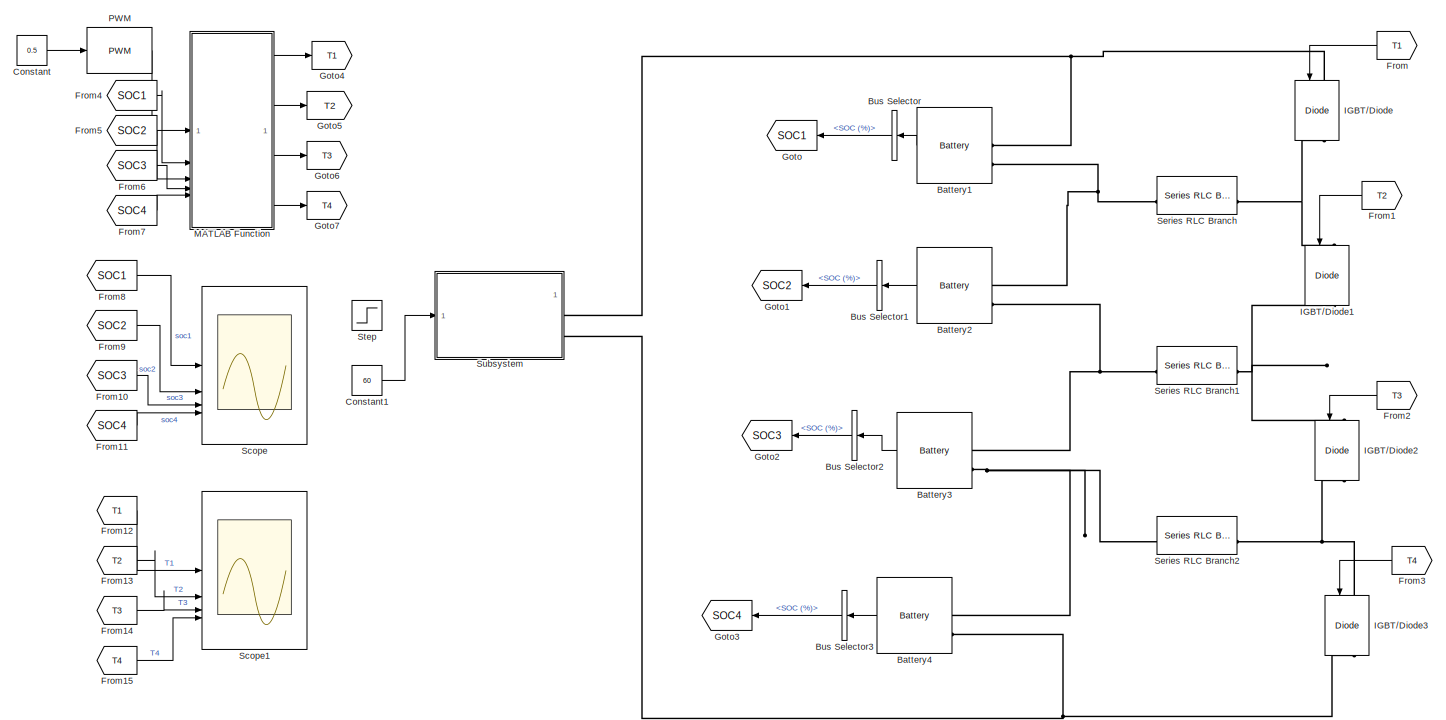
[diagram: root canvas - part 1/2, most of the canvas]
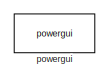
[diagram: root canvas - part 2/2, top left region]
MODEL slx_6eb0016095eb
KIND model
CONFIG AbsTol = auto
CONFIG EnableMultiTasking = off
CONFIG FixedStep = auto
CONFIG MaxStep = 1e-3
CONFIG MinStep = auto
CONFIG RelTol = 1e-3
CONFIG SampleTimeConstraint = Unconstrained
CONFIG SolverName = ode23tb
CONFIG StartTime = 0.0
CONFIG StopTime = 25
BLOCK [Reference] Battery1  REF=spsBatteryLib/Battery
  LibrarySourceBlock = sps_lib/Sources/Battery
  SourceBlock = spsBatteryLib/Battery
  SourceType = Battery
BLOCK [Reference] Battery2  REF=spsBatteryLib/Battery
  LibrarySourceBlock = sps_lib/Sources/Battery
  SourceBlock = spsBatteryLib/Battery
  SourceType = Battery
BLOCK [Reference] Battery3  REF=spsBatteryLib/Battery
  LibrarySourceBlock = sps_lib/Sources/Battery
  SourceBlock = spsBatteryLib/Battery
  SourceType = Battery
BLOCK [Reference] Battery4  REF=spsBatteryLib/Battery
  LibrarySourceBlock = sps_lib/Sources/Battery
  SourceBlock = spsBatteryLib/Battery
  SourceType = Battery
BLOCK [BusSelector] Bus Selector
  NameLocation = top
  OutputSignals = SOC (%)
BLOCK [BusSelector] Bus Selector1
  NameLocation = top
  OutputSignals = SOC (%)
BLOCK [BusSelector] Bus Selector2
  NameLocation = top
  OutputSignals = SOC (%)
BLOCK [BusSelector] Bus Selector3
  NameLocation = top
  OutputSignals = SOC (%)
BLOCK [Constant] Constant
  Value = 0.5
BLOCK [Constant] Constant1
  Value = 60
BLOCK [From] From
  GotoTag = T1
  NameLocation = top
BLOCK [From] From1
  GotoTag = T2
  NameLocation = top
BLOCK [From] From10
  GotoTag = SOC3
  NameLocation = top
BLOCK [From] From11
  GotoTag = SOC4
  NameLocation = top
BLOCK [From] From12
  GotoTag = T1
  NameLocation = top
BLOCK [From] From13
  GotoTag = T2
  NameLocation = top
BLOCK [From] From14
  GotoTag = T3
  NameLocation = top
BLOCK [From] From15
  GotoTag = T4
  NameLocation = top
BLOCK [From] From2
  GotoTag = T3
  NameLocation = top
BLOCK [From] From3
  GotoTag = T4
  NameLocation = top
BLOCK [From] From4
  GotoTag = SOC1
  NameLocation = top
BLOCK [From] From5
  GotoTag = SOC2
  NameLocation = top
BLOCK [From] From6
  GotoTag = SOC3
  NameLocation = top
BLOCK [From] From7
  GotoTag = SOC4
  NameLocation = top
BLOCK [From] From8
  GotoTag = SOC1
  NameLocation = top
BLOCK [From] From9
  GotoTag = SOC2
  NameLocation = top
BLOCK [Goto] Goto
  GotoTag = SOC1
  NameLocation = top
BLOCK [Goto] Goto1
  GotoTag = SOC2
  NameLocation = top
BLOCK [Goto] Goto2
  GotoTag = SOC3
  NameLocation = top
BLOCK [Goto] Goto3
  GotoTag = SOC4
  NameLocation = top
BLOCK [Goto] Goto4
  GotoTag = T1
  NameLocation = top
BLOCK [Goto] Goto5
  GotoTag = T2
  NameLocation = top
BLOCK [Goto] Goto6
  GotoTag = T3
  NameLocation = top
BLOCK [Goto] Goto7
  GotoTag = T4
  NameLocation = top
BLOCK [Reference] IGBT//Diode  REF=spsIGBTDiodeLib/IGBT//Diode
  LibrarySourceBlock = sps_lib/Power Electronics/IGBT//Diode
  NameLocation = left
  SourceBlock = spsIGBTDiodeLib/IGBT//Diode
  SourceType = IGBT/Diode
BLOCK [Reference] IGBT//Diode1  REF=spsIGBTDiodeLib/IGBT//Diode
  LibrarySourceBlock = sps_lib/Power Electronics/IGBT//Diode
  NameLocation = left
  SourceBlock = spsIGBTDiodeLib/IGBT//Diode
  SourceType = IGBT/Diode
BLOCK [Reference] IGBT//Diode2  REF=spsIGBTDiodeLib/IGBT//Diode
  LibrarySourceBlock = sps_lib/Power Electronics/IGBT//Diode
  NameLocation = left
  SourceBlock = spsIGBTDiodeLib/IGBT//Diode
  SourceType = IGBT/Diode
BLOCK [Reference] IGBT//Diode3  REF=spsIGBTDiodeLib/IGBT//Diode
  LibrarySourceBlock = sps_lib/Power Electronics/IGBT//Diode
  NameLocation = left
  SourceBlock = spsIGBTDiodeLib/IGBT//Diode
  SourceType = IGBT/Diode
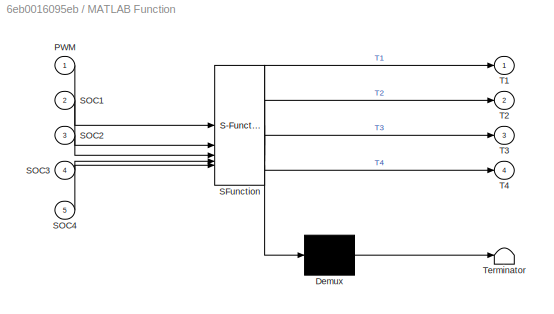
BLOCK [SubSystem] MATLAB Function
  ErrorFcn = Stateflow.Translate.translate
  LibrarySourceBlock = simulink/User-Defined\nFunctions/MATLAB Function
  PermitHierarchicalResolution = ExplicitOnly
  SFBlockType = MATLAB Function
  TreatAsAtomicUnit = on
BLOCK [Demux] MATLAB Function/ Demux 
  Outputs = 1
BLOCK [S-Function] MATLAB Function/ SFunction 
  EnableBusSupport = on
  FunctionName = sf_sfun
  PortCounts = [5 5]
  SFcnIsStateOwnerBlock = off
  SFunctionDeploymentMode = off
  Tag = Stateflow S-Function 2
BLOCK [Terminator] MATLAB Function/ Terminator 
BLOCK [Inport] MATLAB Function/PWM
BLOCK [Inport] MATLAB Function/SOC1
  Port = 2
BLOCK [Inport] MATLAB Function/SOC2
  Port = 3
BLOCK [Inport] MATLAB Function/SOC3
  Port = 4
BLOCK [Inport] MATLAB Function/SOC4
  Port = 5
BLOCK [Outport] MATLAB Function/T1
BLOCK [Outport] MATLAB Function/T2
  Port = 2
BLOCK [Outport] MATLAB Function/T3
  Port = 3
BLOCK [Outport] MATLAB Function/T4
  Port = 4
BLOCK [Reference] PWM  REF=simulink/Discontinuities/PWM
  DisableCoverage = on
  SourceBlock = simulink/Discontinuities/PWM
  SourceType = PWM
BLOCK [Scope] Scope
  Floating = off
  NumInputPorts = 4
  ScopeSpecificationString = Simulink.scopes.TimeScopeBlockCfg('CurrentConfiguration', extmgr.ConfigurationSet(extmgr.Configuration('Core','General UI',true),extmgr.Configuration('Core','Source UI',true),extmgr.Configuration('Sources','WiredSimulink',true,'DataLoggingVariableName','ScopeData1'),extmgr.Configuration('Visuals','Time Domain',true,'SerializedDisplays',{struct('MinYLimReal','37.49989','MaxYLimReal','62.50099','YLa...<+1591ch>
BLOCK [Scope] Scope1
  Floating = off
  NumInputPorts = 4
  ScopeSpecificationString = Simulink.scopes.TimeScopeBlockCfg('CurrentConfiguration', extmgr.ConfigurationSet(extmgr.Configuration('Core','General UI',true),extmgr.Configuration('Core','Source UI',true),extmgr.Configuration('Sources','WiredSimulink',true,'DataLoggingVariableName','ScopeData2'),extmgr.Configuration('Visuals','Time Domain',true,'SerializedDisplays',{struct('MinYLimReal','-0.125','MaxYLimReal','1.125','YLabelRe...<+3420ch>
BLOCK [Reference] Series RLC Branch  REF=spsSeriesRLCBranchLib/Series RLC Branch
  LibrarySourceBlock = sps_lib/Passives/Series RLC Branch
  SourceBlock = spsSeriesRLCBranchLib/Series RLC Branch
  SourceType = Series RLC Branch
BLOCK [Reference] Series RLC Branch1  REF=spsSeriesRLCBranchLib/Series RLC Branch
  LibrarySourceBlock = sps_lib/Passives/Series RLC Branch
  SourceBlock = spsSeriesRLCBranchLib/Series RLC Branch
  SourceType = Series RLC Branch
BLOCK [Reference] Series RLC Branch2  REF=spsSeriesRLCBranchLib/Series RLC Branch
  LibrarySourceBlock = sps_lib/Passives/Series RLC Branch
  SourceBlock = spsSeriesRLCBranchLib/Series RLC Branch
  SourceType = Series RLC Branch
BLOCK [Step] Step
  After = -60
  Before = 60
  SampleTime = 0
  Time = 5
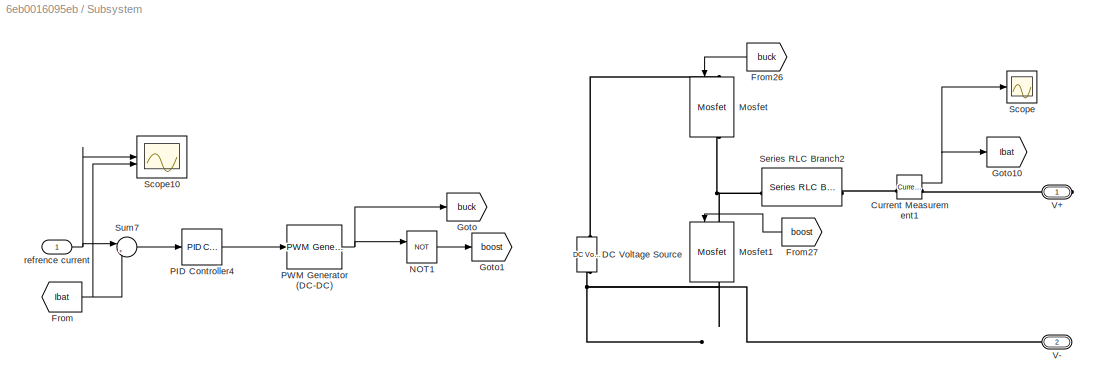
BLOCK [SubSystem] Subsystem
BLOCK [Reference] Subsystem/Current Measurement1  REF=spsCurrentMeasurementLib/Current Measurement
  LibrarySourceBlock = sps_lib/Sensors and Measurements/Current Measurement
  SourceBlock = spsCurrentMeasurementLib/Current Measurement
  SourceType = Current Measurement
  UserDataPersistent = on
BLOCK [Reference] Subsystem/DC Voltage Source  REF=spsDCVoltageSourceLib/DC Voltage Source
  LibrarySourceBlock = sps_lib/Sources/DC Voltage Source
  SourceBlock = spsDCVoltageSourceLib/DC Voltage Source
  SourceType = DC Voltage Source
BLOCK [From] Subsystem/From
  GotoTag = Ibat
BLOCK [From] Subsystem/From26
  GotoTag = buck
  NameLocation = top
BLOCK [From] Subsystem/From27
  GotoTag = boost
  NameLocation = top
BLOCK [Goto] Subsystem/Goto
  GotoTag = buck
  NameLocation = top
BLOCK [Goto] Subsystem/Goto1
  GotoTag = boost
  NameLocation = top
BLOCK [Goto] Subsystem/Goto10
  GotoTag = Ibat
BLOCK [Reference] Subsystem/Mosfet  REF=spsMosfetLib/Mosfet
  LibrarySourceBlock = sps_lib/Power Electronics/Mosfet
  NameLocation = left
  SourceBlock = spsMosfetLib/Mosfet
  SourceType = Mosfet
BLOCK [Reference] Subsystem/Mosfet1  REF=spsMosfetLib/Mosfet
  LibrarySourceBlock = sps_lib/Power Electronics/Mosfet
  NameLocation = left
  SourceBlock = spsMosfetLib/Mosfet
  SourceType = Mosfet
BLOCK [Logic] Subsystem/NOT1
  AllPortsSameDT = off
  IconShape = distinctive
  Operator = NOT
  OutDataTypeStr = boolean
BLOCK [Reference] Subsystem/PID Controller4  REF=slpidlib/PID Controller
  LibrarySourceBlock = simulink/Continuous/PID Controller
  SourceBlock = slpidlib/PID Controller
  SourceType = PID 1dof
BLOCK [Reference] Subsystem/PWM Generator (DC-DC)  REF=spsPWMGeneratorDCDCLib/PWM Generator
(DC-DC)
  LibrarySourceBlock = sps_lib/Power Electronics/Power Electronics Control/PWM Generator\n(DC-DC)
  SourceBlock = spsPWMGeneratorDCDCLib/PWM Generator\n(DC-DC)
  SourceType = PWM Generator (DC-DC)
BLOCK [Scope] Subsystem/Scope
  Floating = off
  NumInputPorts = 1
  ScopeSpecificationString = Simulink.scopes.TimeScopeBlockCfg('CurrentConfiguration', extmgr.ConfigurationSet(extmgr.Configuration('Core','General UI',true),extmgr.Configuration('Core','Source UI',true),extmgr.Configuration('Sources','WiredSimulink',true,'DataLoggingVariableName','ScopeData3'),extmgr.Configuration('Visuals','Time Domain',true,'SerializedDisplays',{struct('MinYLimReal','-75.50153','MaxYLimReal','76.93861','YL...<+1456ch>
BLOCK [Scope] Subsystem/Scope10
  Floating = off
  NumInputPorts = 2
  ScopeSpecificationString = Simulink.scopes.TimeScopeBlockCfg('CurrentConfiguration', extmgr.ConfigurationSet(extmgr.Configuration('Core','General UI',true),extmgr.Configuration('Core','Source UI',true),extmgr.Configuration('Sources','WiredSimulink',true),extmgr.Configuration('Visuals','Time Domain',true,'SerializedDisplays',{struct('MinYLimReal','-7.7103','MaxYLimReal','69.39938','YLabelReal','','MinYLimMag','0.00000','MaxY...<+1405ch>
BLOCK [Reference] Subsystem/Series RLC Branch2  REF=spsSeriesRLCBranchLib/Series RLC Branch
  LibrarySourceBlock = sps_lib/Passives/Series RLC Branch
  SourceBlock = spsSeriesRLCBranchLib/Series RLC Branch
  SourceType = Series RLC Branch
BLOCK [Sum] Subsystem/Sum7
  Inputs = |+-
BLOCK [PMIOPort] Subsystem/V+
  Side = Right
BLOCK [PMIOPort] Subsystem/V-
  Port = 2
  Side = Right
BLOCK [Inport] Subsystem/refrence current
BLOCK [Reference] powergui  REF=sps_lib/powergui
  Priority = 1
  SourceBlock = sps_lib/powergui
  SourceType = PSB option menu block
LINE Battery1:1 -> Bus Selector:1
LINE Battery2:1 -> Bus Selector1:1
LINE Battery3:1 -> Bus Selector2:1
LINE Battery4:1 -> Bus Selector3:1
LINE Bus Selector1:1 -> Goto1:1
LINE Bus Selector2:1 -> Goto2:1
LINE Bus Selector3:1 -> Goto3:1
LINE Bus Selector:1 -> Goto:1
LINE Constant1:1 -> Subsystem:1
LINE Constant:1 -> PWM:1
LINE From10:1 -> Scope:3
LINE From11:1 -> Scope:4
LINE From12:1 -> Scope1:1
LINE From13:1 -> Scope1:2
LINE From14:1 -> Scope1:3
LINE From15:1 -> Scope1:4
LINE From1:1 -> IGBT//Diode1:1
LINE From2:1 -> IGBT//Diode2:1
LINE From3:1 -> IGBT//Diode3:1
LINE From4:1 -> MATLAB Function:2
LINE From5:1 -> MATLAB Function:3
LINE From6:1 -> MATLAB Function:4
LINE From7:1 -> MATLAB Function:5
LINE From8:1 -> Scope:1
LINE From9:1 -> Scope:2
LINE From:1 -> IGBT//Diode:1
LINE MATLAB Function:1 -> Goto4:1
LINE MATLAB Function:2 -> Goto5:1
LINE MATLAB Function:3 -> Goto6:1
LINE MATLAB Function:4 -> Goto7:1
LINE PWM:1 -> MATLAB Function:1
NET Subsystem/Current Measurement1:1 -> Subsystem/Goto10:1, Subsystem/Scope:1
LINE Subsystem/From26:1 -> Subsystem/Mosfet:1
LINE Subsystem/From27:1 -> Subsystem/Mosfet1:1
NET Subsystem/From:1 -> Subsystem/Scope10:2, Subsystem/Sum7:2
LINE Subsystem/NOT1:1 -> Subsystem/Goto1:1
LINE Subsystem/PID Controller4:1 -> Subsystem/PWM Generator (DC-DC):1
NET Subsystem/PWM Generator (DC-DC):1 -> Subsystem/Goto:1, Subsystem/NOT1:1
LINE Subsystem/Sum7:1 -> Subsystem/PID Controller4:1
NET Subsystem/refrence current:1 -> Subsystem/Scope10:1, Subsystem/Sum7:1
PNET net1: Battery1:LConn1 -- IGBT//Diode:LConn1 -- Subsystem:RConn1
PNET net2: Battery1:LConn2 -- Battery2:LConn1 -- Series RLC Branch:LConn1
PNET net3: Battery2:LConn2 -- Battery3:LConn1 -- Series RLC Branch1:LConn1
PNET net4: Battery3:LConn2 -- Battery4:LConn1 -- Series RLC Branch2:LConn1
PNET net5: Battery4:LConn2 -- IGBT//Diode3:RConn1 -- Subsystem:RConn2
PNET net6: IGBT//Diode1:LConn1 -- IGBT//Diode:RConn1 -- Series RLC Branch:RConn1
PNET net7: IGBT//Diode1:RConn1 -- IGBT//Diode2:LConn1 -- Series RLC Branch1:RConn1
PNET net8: IGBT//Diode2:RConn1 -- IGBT//Diode3:LConn1 -- Series RLC Branch2:RConn1
PLINE Subsystem/Current Measurement1:LConn1 -- Subsystem/Series RLC Branch2:RConn1
PLINE Subsystem/Current Measurement1:RConn1 -- Subsystem/V+:RConn1
PNET net9: Subsystem/DC Voltage Source:LConn1 -- Subsystem/Mosfet1:RConn1 -- Subsystem/V-:RConn1
PLINE Subsystem/DC Voltage Source:RConn1 -- Subsystem/Mosfet:LConn1
PNET net10: Subsystem/Mosfet1:LConn1 -- Subsystem/Mosfet:RConn1 -- Subsystem/Series RLC Branch2:LConn1
note: NET lines group one-source signal fan-out (src -> all destinations, sorted); 1:1 wires keep LINE; PNET lines group multi-terminal physical nets as a canonical sorted terminal list (undirected conserving connections); 2-terminal nets keep the pairwise PLINE form
CHART MATLAB Function states=1 transitions=1
  STATE_LABEL 'eML_blk_kernel()'
  STATE_LABEL 'SCRIPT:\nfunction [T1,T2,T3,T4] = fcn(PWM, SOC1, SOC2, SOC3, SOC4)\n\npersistent balancing_active\n\nif isempty(balancing_active)\n    balancing_active = false;\nend\n\nSOC = [SOC1, SOC2, SOC3, SOC4];\nSOC_diff = max(SOC) - min(SOC);\n\n% Apply hysteresis logic\nif ~balancing_active && SOC_diff > 5\n    balancing_active = true;\nelseif balancing_active && SOC_diff <= 3\n    balancing_active = false;\nend\n\nif balan...<+189ch>'
CHART  states=0 transitions=0
